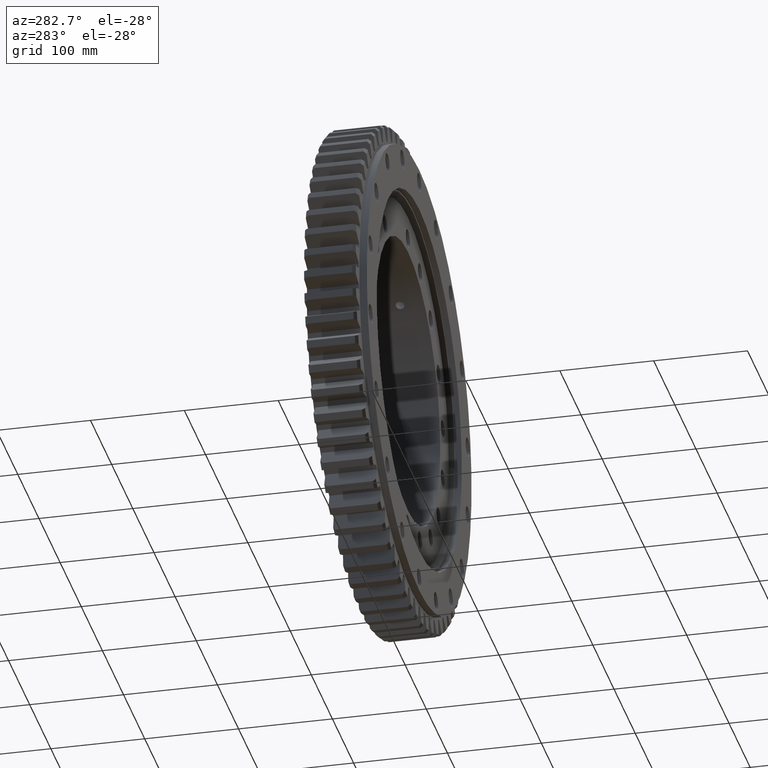
[diagram: clean part render]
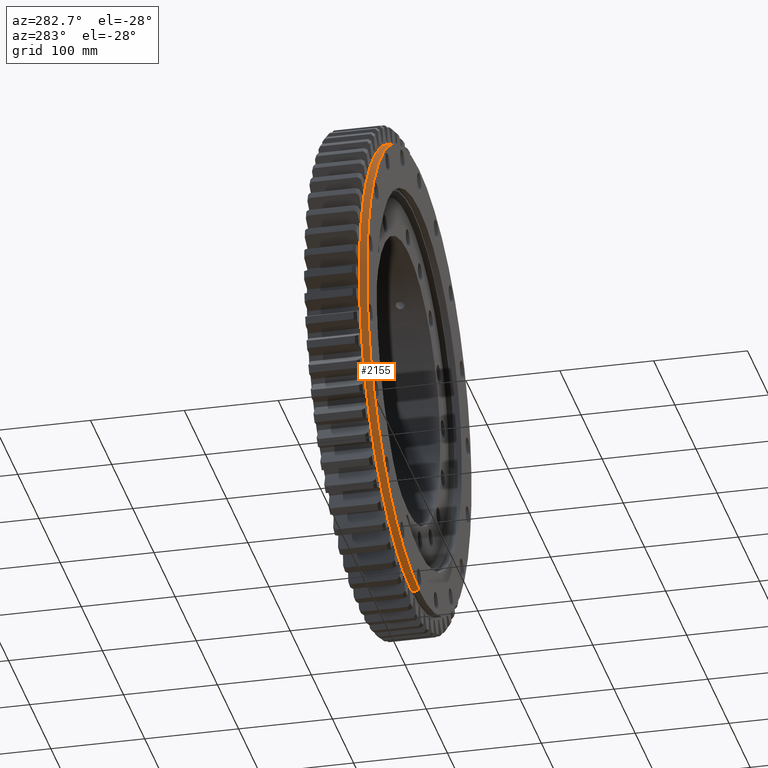
[diagram: same view with one face highlighted and labeled with its STEP entity id]
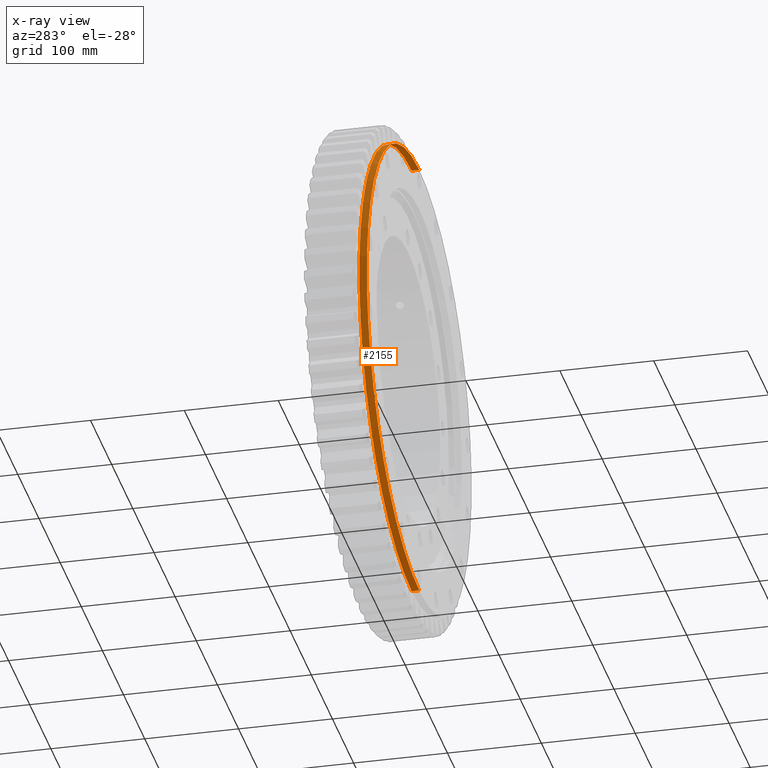
[diagram: x-ray of the same camera — body ghosted, the highlighted face saturated]
A machine part, auxiliary view. The second image highlights one B-rep face of the part: STEP entity #2155.
The next image is the same camera in x-ray: the body ghosted, the highlighted face saturated — about 0% of this face is hidden behind the body in this view.
In plain terms, the highlighted cylindrical surface (partial cylindrical patch) has radius 247.5 mm, axis along (-0, 1, -0).
Its self-contained STEP definition (entity closure, byte-faithful):
#516 = EDGE_LOOP ( 'NONE', ( #5567, #17954, #15864, #17253 ) ) ;
#833 = CARTESIAN_POINT ( 'NONE',  ( 0.0000000000000000000, -37.50000000000002100, 0.0000000000000000000 ) ) ;
#1496 = VERTEX_POINT ( 'NONE', #11503 ) ;
#1942 = DIRECTION ( 'NONE',  ( 0.0000000000000000000, 0.0000000000000000000, 1.000000000000000000 ) ) ;
#2155 = ADVANCED_FACE ( 'NONE', ( #10035 ), #3166, .T. ) ;
#2161 = AXIS2_PLACEMENT_3D ( 'NONE', #833, #12185, #1942 ) ;
#2444 = EDGE_CURVE ( 'NONE', #12103, #9082, #15394, .T. ) ;
#2487 = DIRECTION ( 'NONE',  ( -0.0000000000000000000, 1.000000000000000000, -0.0000000000000000000 ) ) ;
#3166 = CYLINDRICAL_SURFACE ( 'NONE', #4570, 247.5000000000000000 ) ;
#3360 = LINE ( 'NONE', #18625, #7265 ) ;
#4473 = CARTESIAN_POINT ( 'NONE',  ( 0.0000000000000000000, -29.50000000000001100, 247.4999999999999700 ) ) ;
#4570 = AXIS2_PLACEMENT_3D ( 'NONE', #7817, #16564, #15104 ) ;
#5567 = ORIENTED_EDGE ( 'NONE', *, *, #9337, .F. ) ;
#6487 = VERTEX_POINT ( 'NONE', #18714 ) ;
#6511 = EDGE_CURVE ( 'NONE', #12103, #6487, #9638, .T. ) ;
#7265 = VECTOR ( 'NONE', #10010, 1000.000000000000000 ) ;
#7817 = CARTESIAN_POINT ( 'NONE',  ( 0.0000000000000000000, 68.26107226107227200, 0.0000000000000000000 ) ) ;
#8509 = DIRECTION ( 'NONE',  ( -0.0000000000000000000, 1.000000000000000000, -0.0000000000000000000 ) ) ;
#9082 = VERTEX_POINT ( 'NONE', #4473 ) ;
#9337 = EDGE_CURVE ( 'NONE', #6487, #1496, #3360, .T. ) ;
#9638 = CIRCLE ( 'NONE', #2161, 247.5000000000000000 ) ;
#10010 = DIRECTION ( 'NONE',  ( -0.0000000000000000000, 1.000000000000000000, -0.0000000000000000000 ) ) ;
#10035 = FACE_OUTER_BOUND ( 'NONE', #516, .T. ) ;
#11270 = CARTESIAN_POINT ( 'NONE',  ( 0.0000000000000000000, -29.50000000000001100, 0.0000000000000000000 ) ) ;
#11503 = CARTESIAN_POINT ( 'NONE',  ( 3.031000827889698700E-014, -29.50000000000001100, -247.4999999999999700 ) ) ;
#11528 = VECTOR ( 'NONE', #8509, 1000.000000000000000 ) ;
#11727 = AXIS2_PLACEMENT_3D ( 'NONE', #11270, #2487, #12744 ) ;
#12103 = VERTEX_POINT ( 'NONE', #17090 ) ;
#12185 = DIRECTION ( 'NONE',  ( 0.0000000000000000000, -1.000000000000000000, 0.0000000000000000000 ) ) ;
#12744 = DIRECTION ( 'NONE',  ( 0.0000000000000000000, 0.0000000000000000000, 1.000000000000000000 ) ) ;
#15104 = DIRECTION ( 'NONE',  ( 0.0000000000000000000, 0.0000000000000000000, 1.000000000000000000 ) ) ;
#15394 = LINE ( 'NONE', #17266, #11528 ) ;
#15864 = ORIENTED_EDGE ( 'NONE', *, *, #2444, .T. ) ;
#16438 = CIRCLE ( 'NONE', #11727, 247.4999999999999700 ) ;
#16564 = DIRECTION ( 'NONE',  ( -0.0000000000000000000, 1.000000000000000000, -0.0000000000000000000 ) ) ;
#16961 = EDGE_CURVE ( 'NONE', #1496, #9082, #16438, .T. ) ;
#17090 = CARTESIAN_POINT ( 'NONE',  ( 0.0000000000000000000, -37.50000000000002100, 247.5000000000000000 ) ) ;
#17253 = ORIENTED_EDGE ( 'NONE', *, *, #16961, .F. ) ;
#17266 = CARTESIAN_POINT ( 'NONE',  ( 0.0000000000000000000, 68.26107226107227200, 247.5000000000000000 ) ) ;
#17954 = ORIENTED_EDGE ( 'NONE', *, *, #6511, .F. ) ;
#18625 = CARTESIAN_POINT ( 'NONE',  ( 3.031000827889699300E-014, 68.26107226107227200, -247.5000000000000000 ) ) ;
#18714 = CARTESIAN_POINT ( 'NONE',  ( 3.031000827889699300E-014, -37.50000000000002100, -247.5000000000000000 ) ) ;